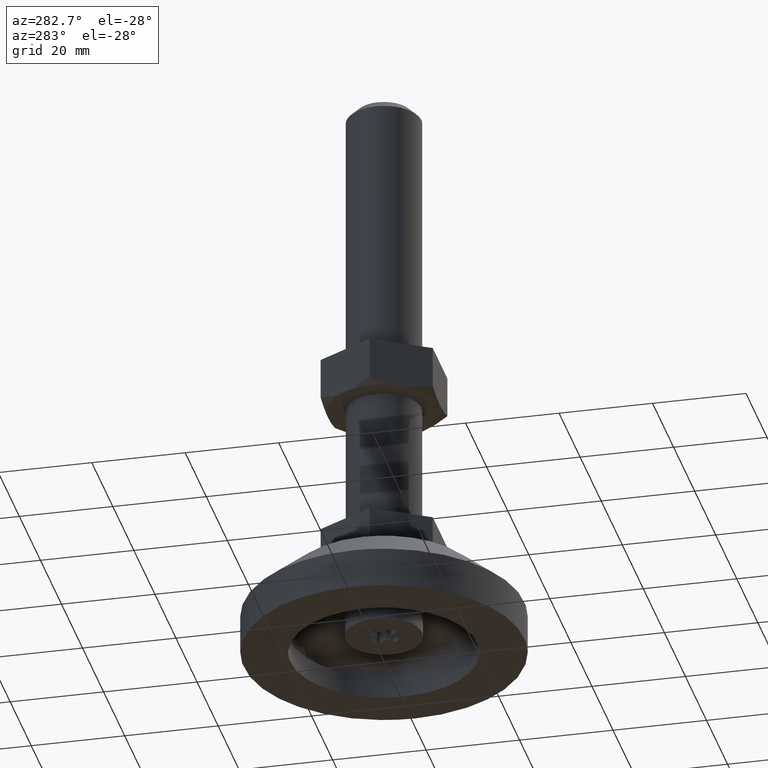
[diagram: clean part render]
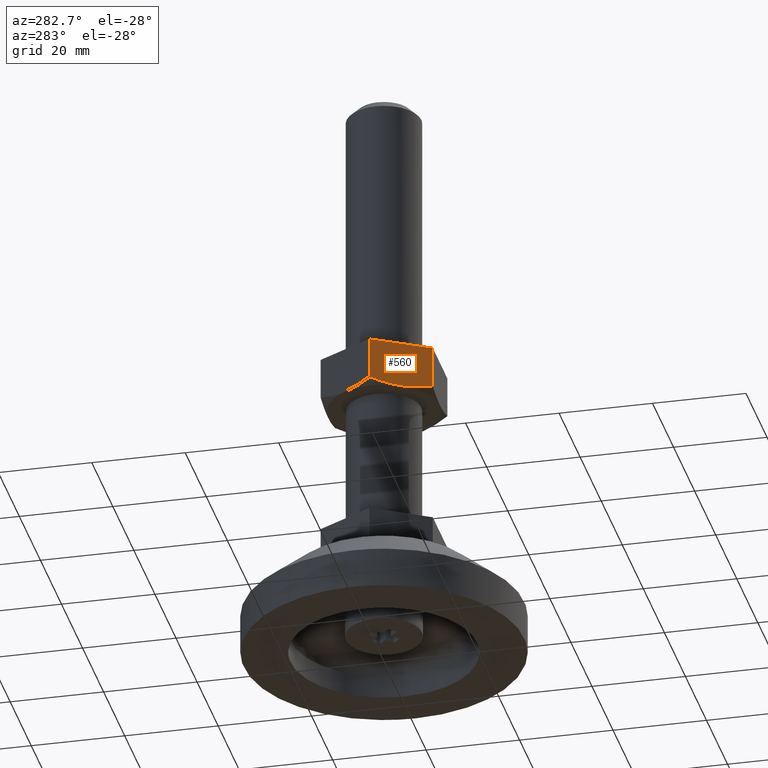
[diagram: same view with one face highlighted and labeled with its STEP entity id]
A machine part, auxiliary view. The second image highlights one B-rep face of the part: STEP entity #560.
In plain terms, the highlighted face is a freeform B-spline surface patch.
Its self-contained STEP definition (entity closure, byte-faithful):
#195=CARTESIAN_POINT('',(-6.921797000000001,-12.0,58.073646796981102));
#196=VERTEX_POINT('',#195);
#219=CARTESIAN_POINT('',(-13.850000000000000,1.738792E-015,58.071796703249603));
#220=VERTEX_POINT('',#219);
#221=CARTESIAN_POINT('',(-13.850000000000000,1.738792E-015,58.071796703249603));
#222=CARTESIAN_POINT('',(-13.284368375614850,-0.979702744365638,57.745229132648468));
#223=CARTESIAN_POINT('',(-12.714610914459550,-1.966551647878356,57.476105887228037));
#224=CARTESIAN_POINT('',(-11.851057302962371,-3.462270427764869,57.196578902516457));
#225=CARTESIAN_POINT('',(-11.561716297653019,-3.963423766330757,57.124145855175620));
#226=CARTESIAN_POINT('',(-10.979662554878541,-4.971570455059957,57.026224632327349));
#227=CARTESIAN_POINT('',(-10.686946901265900,-5.478568856139091,57.000777058553723));
#228=CARTESIAN_POINT('',(-10.245161909326690,-6.243762933632266,57.000358269839012));
#229=CARTESIAN_POINT('',(-10.097155733148300,-6.500117159127782,57.006529891489727));
#230=CARTESIAN_POINT('',(-9.802498824526440,-7.010477912625090,57.031294519301113));
#231=CARTESIAN_POINT('',(-9.655682797952514,-7.264770738468543,57.049859409899398));
#232=CARTESIAN_POINT('',(-9.216705319829471,-8.025102059227550,57.123297280416338));
#233=CARTESIAN_POINT('',(-8.926017900959538,-8.528587454565884,57.195954855953623));
#234=CARTESIAN_POINT('',(-8.059134931252544,-10.030072852220060,57.476417054108659));
#235=CARTESIAN_POINT('',(-7.488098331186378,-11.019137289389979,57.746465787438872));
#236=CARTESIAN_POINT('',(-6.921797000000001,-12.0,58.073646796981109));
#237=B_SPLINE_CURVE_WITH_KNOTS('',3,(#221,#222,#223,#224,#225,#226,#227,#228,#229,#230,#231,#232,#233,#234,#235,#236),.UNSPECIFIED.,.F.,.U.,(4,2,2,2,2,2,2,4),(0.0,0.250000000000000,0.375000000000000,0.499999999999999,0.562499999999999,0.624999999999999,0.749999999999999,1.0),.UNSPECIFIED.);
#238=EDGE_CURVE('',#220,#196,#237,.T.);
#490=CARTESIAN_POINT('',(-13.850000000000000,0.0,67.0));
#491=VERTEX_POINT('',#490);
#499=CARTESIAN_POINT('',(-6.921797000000001,-12.0,67.0));
#500=VERTEX_POINT('',#499);
#501=CARTESIAN_POINT('',(-6.921797000000001,-12.0,67.0));
#502=CARTESIAN_POINT('',(-13.850000000000000,0.0,67.0));
#503=QUASI_UNIFORM_CURVE('',1,(#501,#502),.UNSPECIFIED.,.F.,.U.);
#504=EDGE_CURVE('',#500,#491,#503,.T.);
#541=CARTESIAN_POINT('',(-14.196063726421830,0.599399976741658,56.501020617431507));
#542=CARTESIAN_POINT('',(-6.575733087749313,-12.599400298606760,56.501020617431507));
#543=CARTESIAN_POINT('',(-14.196063726421830,0.599399976741658,67.499475482054279));
#544=CARTESIAN_POINT('',(-6.575733087749313,-12.599400298606760,67.499475482054279));
#545=B_SPLINE_SURFACE_WITH_KNOTS('',1,1,((#541,#543),(#542,#544)),.UNSPECIFIED.,.F.,.F.,.U.,(2,2),(2,2),(0.0,15.240661657265029),(0.0,10.998454864622770),.UNSPECIFIED.);
#546=CARTESIAN_POINT('',(-13.850000000000000,0.0,67.0));
#547=CARTESIAN_POINT('',(-13.850000000000000,1.738792E-015,58.071796703249603));
#548=QUASI_UNIFORM_CURVE('',1,(#546,#547),.UNSPECIFIED.,.F.,.U.);
#549=EDGE_CURVE('',#491,#220,#548,.T.);
#550=ORIENTED_EDGE('',*,*,#549,.T.);
#551=ORIENTED_EDGE('',*,*,#238,.T.);
#552=CARTESIAN_POINT('',(-6.921797000000001,-12.0,67.0));
#553=CARTESIAN_POINT('',(-6.921797000000001,-12.0,58.073646796981102));
#554=QUASI_UNIFORM_CURVE('',1,(#552,#553),.UNSPECIFIED.,.F.,.U.);
#555=EDGE_CURVE('',#500,#196,#554,.T.);
#556=ORIENTED_EDGE('',*,*,#555,.F.);
#557=ORIENTED_EDGE('',*,*,#504,.T.);
#558=EDGE_LOOP('',(#550,#551,#556,#557));
#559=FACE_OUTER_BOUND('',#558,.T.);
#560=ADVANCED_FACE('',(#559),#545,.T.);